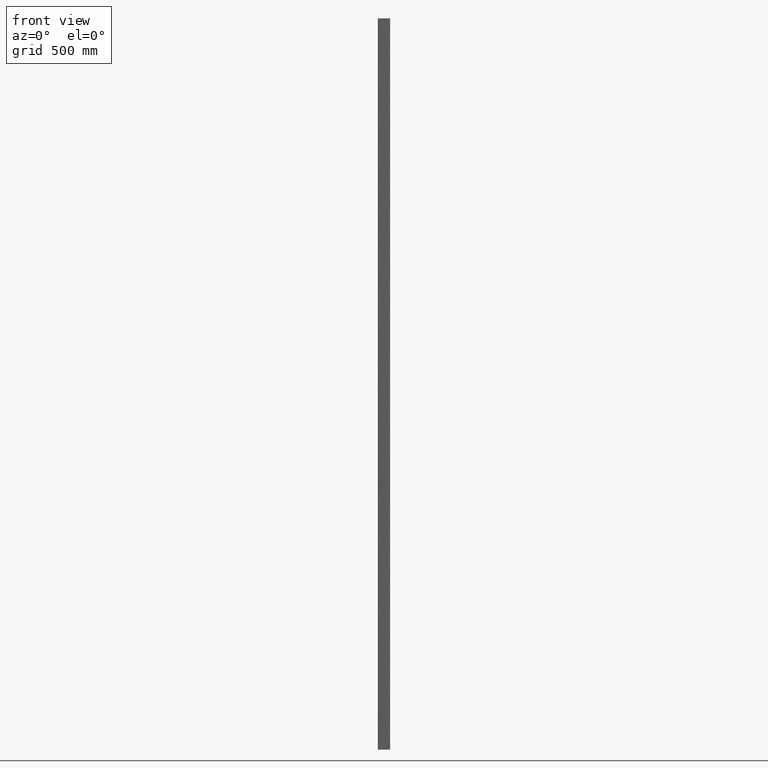
[diagram: clean part render]
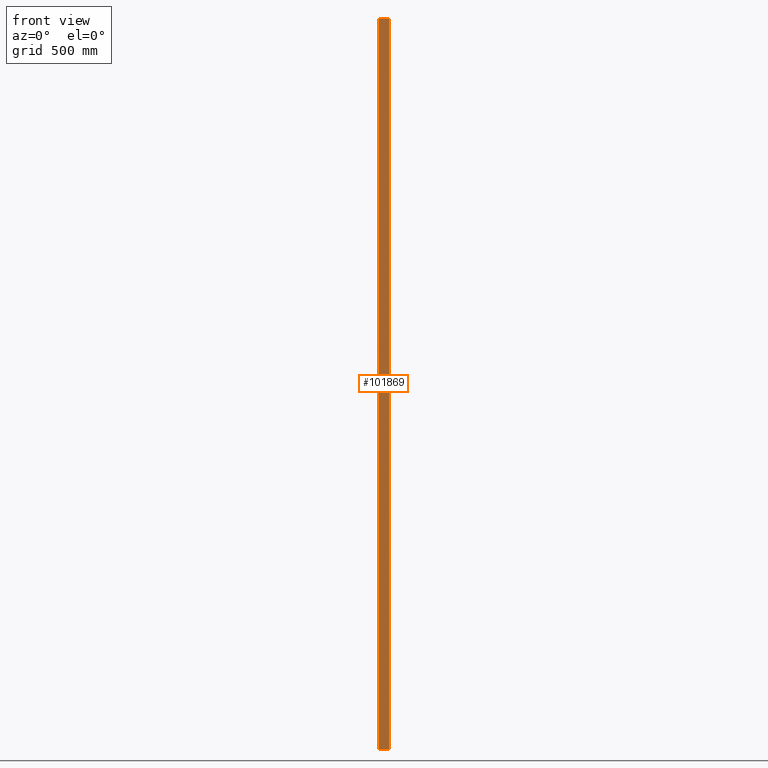
[diagram: same view with one face highlighted and labeled with its STEP entity id]
A machine part, front view. The second image highlights one B-rep face of the part: STEP entity #101869.
In plain terms, the highlighted planar face has unit normal (0, -1, 0).
Its self-contained STEP definition (entity closure, byte-faithful):
#4219 = CARTESIAN_POINT ( 'NONE',  ( -21.24999999999999289, -14.99999999999999467, 0.000000000000000000 ) ) ;
#8684 = VERTEX_POINT ( 'NONE', #22970 ) ;
#13989 = EDGE_CURVE ( 'NONE', #59475, #21728, #61732, .T. ) ;
#16601 = DIRECTION ( 'NONE',  ( 1.000000000000000000, 0.000000000000000000, 0.000000000000000000 ) ) ;
#20569 = ORIENTED_EDGE ( 'NONE', *, *, #114725, .T. ) ;
#21728 = VERTEX_POINT ( 'NONE', #78440 ) ;
#22970 = CARTESIAN_POINT ( 'NONE',  ( -21.24999999999999289, -14.99999999999999467, -3000.000000000000000 ) ) ;
#28743 = DIRECTION ( 'NONE',  ( 0.000000000000000000, -1.000000000000000000, 0.000000000000000000 ) ) ;
#32896 = VECTOR ( 'NONE', #72628, 1000.000000000000000 ) ;
#36476 = AXIS2_PLACEMENT_3D ( 'NONE', #116201, #28743, #76724 ) ;
#37390 = ORIENTED_EDGE ( 'NONE', *, *, #104516, .F. ) ;
#40770 = VECTOR ( 'NONE', #16601, 1000.000000000000000 ) ;
#44391 = CARTESIAN_POINT ( 'NONE',  ( -21.24999999999999289, -14.99999999999999467, -3000.000000000000000 ) ) ;
#48926 = CARTESIAN_POINT ( 'NONE',  ( 21.25000000000000355, -14.99999999999999467, -3000.000000000000000 ) ) ;
#49680 = LINE ( 'NONE', #44391, #107466 ) ;
#53664 = FACE_OUTER_BOUND ( 'NONE', #81472, .T. ) ;
#55257 = CARTESIAN_POINT ( 'NONE',  ( -24.99999999999999289, -14.99999999999999467, -3000.000000000000000 ) ) ;
#59475 = VERTEX_POINT ( 'NONE', #48926 ) ;
#59777 = VERTEX_POINT ( 'NONE', #4219 ) ;
#59810 = ORIENTED_EDGE ( 'NONE', *, *, #78000, .T. ) ;
#61732 = LINE ( 'NONE', #119340, #32896 ) ;
#72628 = DIRECTION ( 'NONE',  ( 0.000000000000000000, 0.000000000000000000, 1.000000000000000000 ) ) ;
#76724 = DIRECTION ( 'NONE',  ( 0.000000000000000000, -0.000000000000000000, -1.000000000000000000 ) ) ;
#78000 = EDGE_CURVE ( 'NONE', #59777, #8684, #49680, .T. ) ;
#78440 = CARTESIAN_POINT ( 'NONE',  ( 21.25000000000000355, -14.99999999999999467, 0.000000000000000000 ) ) ;
#80594 = ORIENTED_EDGE ( 'NONE', *, *, #13989, .T. ) ;
#81472 = EDGE_LOOP ( 'NONE', ( #37390, #59810, #20569, #80594 ) ) ;
#82577 = LINE ( 'NONE', #94604, #102345 ) ;
#85280 = DIRECTION ( 'NONE',  ( 1.000000000000000000, 0.000000000000000000, 0.000000000000000000 ) ) ;
#94451 = DIRECTION ( 'NONE',  ( -0.000000000000000000, -0.000000000000000000, -1.000000000000000000 ) ) ;
#94604 = CARTESIAN_POINT ( 'NONE',  ( -24.99999999999999289, -14.99999999999999467, 0.000000000000000000 ) ) ;
#101869 = ADVANCED_FACE ( 'NONE', ( #53664 ), #106455, .T. ) ;
#102345 = VECTOR ( 'NONE', #85280, 1000.000000000000000 ) ;
#104516 = EDGE_CURVE ( 'NONE', #59777, #21728, #82577, .T. ) ;
#106455 = PLANE ( 'NONE',  #36476 ) ;
#107466 = VECTOR ( 'NONE', #94451, 1000.000000000000000 ) ;
#113770 = LINE ( 'NONE', #55257, #40770 ) ;
#114725 = EDGE_CURVE ( 'NONE', #8684, #59475, #113770, .T. ) ;
#116201 = CARTESIAN_POINT ( 'NONE',  ( -24.99999999999999289, -14.99999999999999467, -3000.000000000000000 ) ) ;
#119340 = CARTESIAN_POINT ( 'NONE',  ( 21.25000000000000355, -14.99999999999999467, -3000.000000000000000 ) ) ;